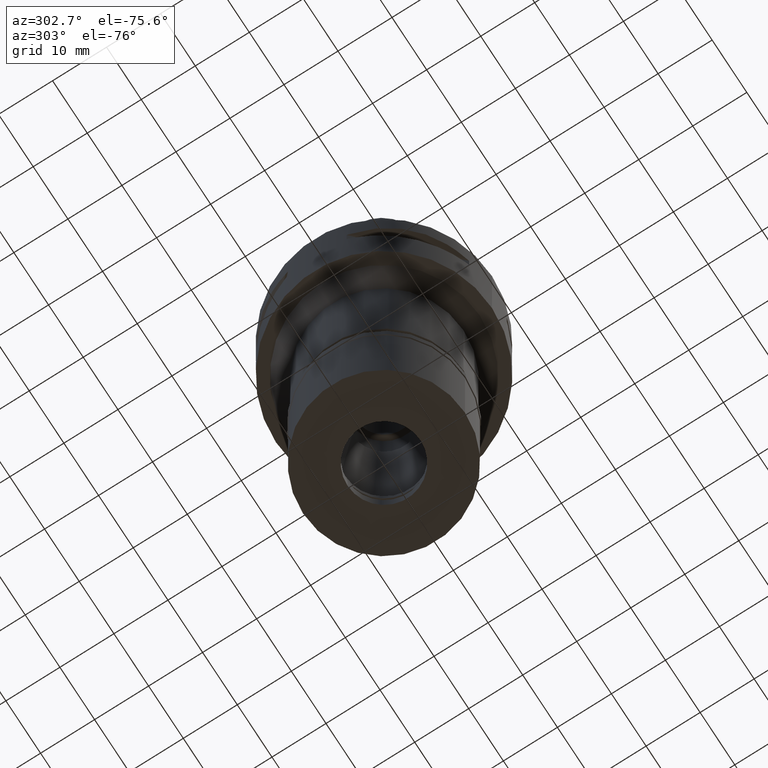
[diagram: clean part render]
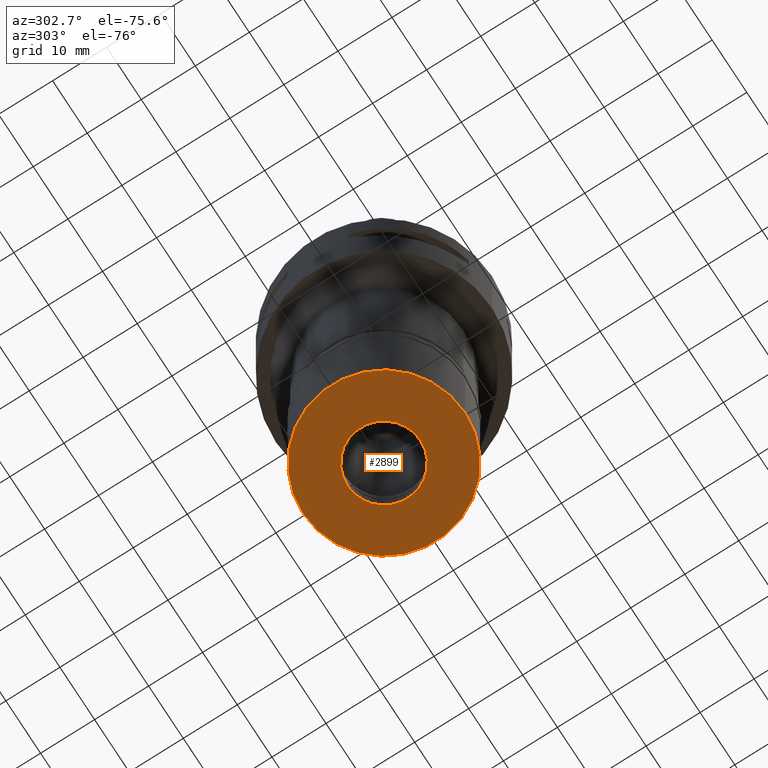
[diagram: same view with one face highlighted and labeled with its STEP entity id]
A machine part, auxiliary view. The second image highlights one B-rep face of the part: STEP entity #2899.
In plain terms, the highlighted planar face has unit normal (0, 0, -1).
Its self-contained STEP definition (entity closure, byte-faithful):
#21 = ORIENTED_EDGE ( 'NONE', *, *, #2078, .F. ) ;
#47 = VERTEX_POINT ( 'NONE', #3303 ) ;
#90 = CARTESIAN_POINT ( 'NONE',  ( 0.0000000000000000000, -6.750000000000000000, -23.80000000000000071 ) ) ;
#192 = ORIENTED_EDGE ( 'NONE', *, *, #2836, .F. ) ;
#342 = DIRECTION ( 'NONE',  ( 0.0000000000000000000, 0.0000000000000000000, -1.000000000000000000 ) ) ;
#420 = CIRCLE ( 'NONE', #2021, 6.750000000000000000 ) ;
#429 = PLANE ( 'NONE',  #2993 ) ;
#768 = DIRECTION ( 'NONE',  ( 0.0000000000000000000, 0.0000000000000000000, -1.000000000000000000 ) ) ;
#773 = AXIS2_PLACEMENT_3D ( 'NONE', #1470, #768, #2187 ) ;
#864 = CIRCLE ( 'NONE', #1868, 15.00000000000000000 ) ;
#896 = ORIENTED_EDGE ( 'NONE', *, *, #4309, .F. ) ;
#1008 = DIRECTION ( 'NONE',  ( 0.0000000000000000000, -1.000000000000000000, 0.0000000000000000000 ) ) ;
#1028 = DIRECTION ( 'NONE',  ( 0.0000000000000000000, 0.0000000000000000000, 1.000000000000000000 ) ) ;
#1031 = CARTESIAN_POINT ( 'NONE',  ( 0.0000000000000000000, 0.0000000000000000000, -23.80000000000000071 ) ) ;
#1365 = VERTEX_POINT ( 'NONE', #4356 ) ;
#1470 = CARTESIAN_POINT ( 'NONE',  ( 0.0000000000000000000, 0.0000000000000000000, -23.80000000000000071 ) ) ;
#1749 = CARTESIAN_POINT ( 'NONE',  ( 0.0000000000000000000, 0.0000000000000000000, -23.80000000000000071 ) ) ;
#1868 = AXIS2_PLACEMENT_3D ( 'NONE', #2755, #3891, #4195 ) ;
#1952 = EDGE_LOOP ( 'NONE', ( #192, #2646 ) ) ;
#2021 = AXIS2_PLACEMENT_3D ( 'NONE', #1031, #342, #1008 ) ;
#2078 = EDGE_CURVE ( 'NONE', #3469, #3037, #4430, .T. ) ;
#2187 = DIRECTION ( 'NONE',  ( 0.0000000000000000000, 1.000000000000000000, 0.0000000000000000000 ) ) ;
#2246 = DIRECTION ( 'NONE',  ( 0.0000000000000000000, -1.000000000000000000, 0.0000000000000000000 ) ) ;
#2291 = FACE_BOUND ( 'NONE', #2805, .T. ) ;
#2646 = ORIENTED_EDGE ( 'NONE', *, *, #3785, .F. ) ;
#2658 = DIRECTION ( 'NONE',  ( 0.0000000000000000000, 0.0000000000000000000, -1.000000000000000000 ) ) ;
#2689 = CIRCLE ( 'NONE', #4376, 15.00000000000000000 ) ;
#2755 = CARTESIAN_POINT ( 'NONE',  ( 0.0000000000000000000, 0.0000000000000000000, -23.80000000000000071 ) ) ;
#2805 = EDGE_LOOP ( 'NONE', ( #21, #896 ) ) ;
#2836 = EDGE_CURVE ( 'NONE', #47, #1365, #2689, .T. ) ;
#2899 = ADVANCED_FACE ( 'NONE', ( #3802, #2291 ), #429, .T. ) ;
#2993 = AXIS2_PLACEMENT_3D ( 'NONE', #3447, #2658, #2246 ) ;
#3037 = VERTEX_POINT ( 'NONE', #90 ) ;
#3238 = DIRECTION ( 'NONE',  ( 0.0000000000000000000, 1.000000000000000000, 0.0000000000000000000 ) ) ;
#3303 = CARTESIAN_POINT ( 'NONE',  ( 0.0000000000000000000, 15.00000000000000000, -23.80000000000000071 ) ) ;
#3447 = CARTESIAN_POINT ( 'NONE',  ( 0.0000000000000000000, 0.0000000000000000000, -23.80000000000000071 ) ) ;
#3469 = VERTEX_POINT ( 'NONE', #4487 ) ;
#3785 = EDGE_CURVE ( 'NONE', #1365, #47, #864, .T. ) ;
#3802 = FACE_OUTER_BOUND ( 'NONE', #1952, .T. ) ;
#3891 = DIRECTION ( 'NONE',  ( 0.0000000000000000000, 0.0000000000000000000, 1.000000000000000000 ) ) ;
#4195 = DIRECTION ( 'NONE',  ( 0.0000000000000000000, -1.000000000000000000, 0.0000000000000000000 ) ) ;
#4309 = EDGE_CURVE ( 'NONE', #3037, #3469, #420, .T. ) ;
#4356 = CARTESIAN_POINT ( 'NONE',  ( 0.0000000000000000000, -15.00000000000000000, -23.80000000000000071 ) ) ;
#4376 = AXIS2_PLACEMENT_3D ( 'NONE', #1749, #1028, #3238 ) ;
#4430 = CIRCLE ( 'NONE', #773, 6.750000000000000000 ) ;
#4487 = CARTESIAN_POINT ( 'NONE',  ( 0.0000000000000000000, 6.750000000000000000, -23.80000000000000071 ) ) ;